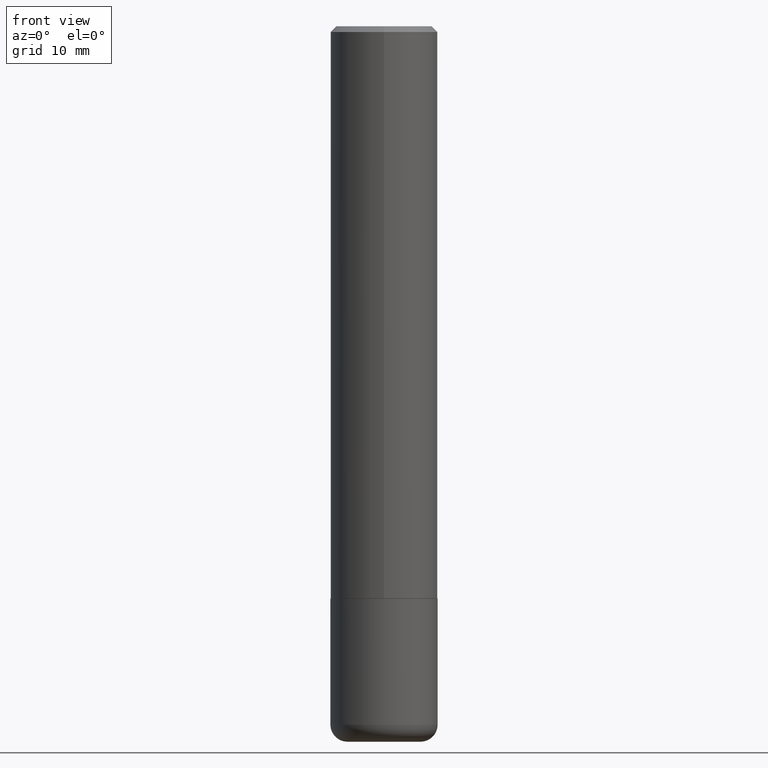
[diagram: clean part render]
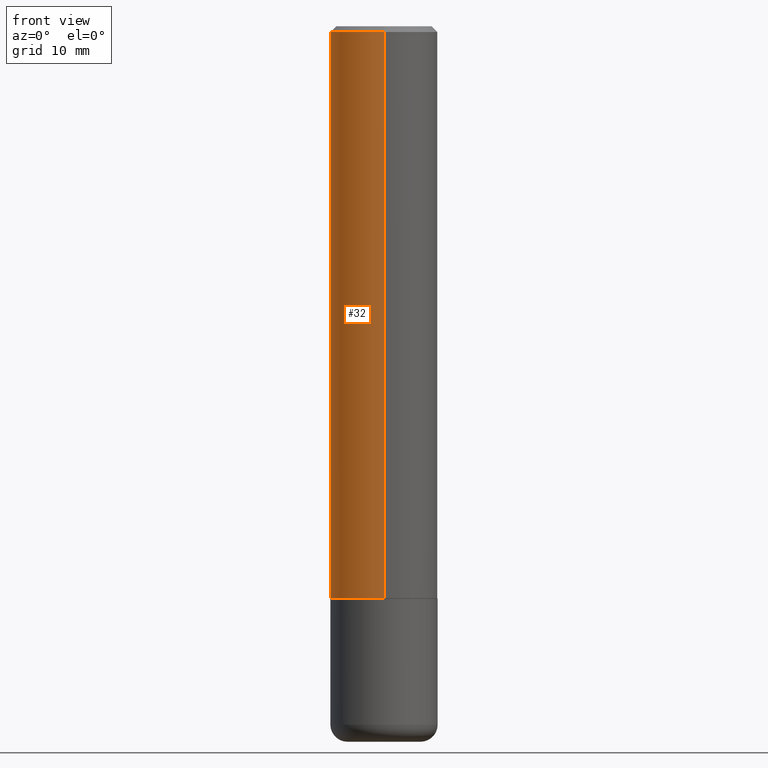
[diagram: same view with one face highlighted and labeled with its STEP entity id]
A machine part, front view. The second image highlights one B-rep face of the part: STEP entity #32.
In plain terms, the highlighted cylindrical surface (partial cylindrical patch) has radius 4.7625 mm, axis along (-0, 0, 1).
Its self-contained STEP definition (entity closure, byte-faithful):
#17 = DIRECTION ( 'NONE',  ( -6.982962677686265922E-15, -1.000000000000000000, 3.491920538655792507E-15 ) ) ;
#30 = DIRECTION ( 'NONE',  ( -6.982962677686265922E-15, -1.000000000000000000, 3.483106191921934371E-15 ) ) ;
#32 = ADVANCED_FACE ( 'NONE', ( #116 ), #201, .T. ) ;
#34 = DIRECTION ( 'NONE',  ( -2.445162114595160294E-29, 3.491920538655792902E-15, 1.000000000000000000 ) ) ;
#43 = VERTEX_POINT ( 'NONE', #175 ) ;
#48 = CARTESIAN_POINT ( 'NONE',  ( 4.887879067075725967E-29, -6.980349156772927879E-15, -1.998999999999999888 ) ) ;
#51 = EDGE_CURVE ( 'NONE', #221, #43, #342, .T. ) ;
#84 = AXIS2_PLACEMENT_3D ( 'NONE', #184, #314, #30 ) ;
#99 = EDGE_CURVE ( 'NONE', #43, #144, #245, .T. ) ;
#116 = FACE_OUTER_BOUND ( 'NONE', #194, .T. ) ;
#130 = VERTEX_POINT ( 'NONE', #417 ) ;
#144 = VERTEX_POINT ( 'NONE', #210 ) ;
#175 = CARTESIAN_POINT ( 'NONE',  ( -1.309305502066128268E-15, -0.1875000000000072442, -1.998999999999999444 ) ) ;
#178 = EDGE_CURVE ( 'NONE', #130, #144, #317, .T. ) ;
#184 = CARTESIAN_POINT ( 'NONE',  ( 4.890324229190331589E-31, -6.983841077311600052E-17, -0.02000000000000004205 ) ) ;
#185 = ORIENTED_EDGE ( 'NONE', *, *, #247, .F. ) ;
#193 = DIRECTION ( 'NONE',  ( -2.445162114595160294E-29, 3.491920538655792902E-15, 1.000000000000000000 ) ) ;
#194 = EDGE_LOOP ( 'NONE', ( #185, #346, #249, #246 ) ) ;
#201 = CYLINDRICAL_SURFACE ( 'NONE', #407, 0.1875000000000001943 ) ;
#203 = LINE ( 'NONE', #254, #384 ) ;
#210 = CARTESIAN_POINT ( 'NONE',  ( -1.286343374582161774E-15, -0.1875000000000001110, -0.01999999999999938979 ) ) ;
#221 = VERTEX_POINT ( 'NONE', #294 ) ;
#233 = DIRECTION ( 'NONE',  ( -2.445162114595160575E-29, 3.491920538655792507E-15, 1.000000000000000000 ) ) ;
#245 = LINE ( 'NONE', #378, #257 ) ;
#246 = ORIENTED_EDGE ( 'NONE', *, *, #178, .F. ) ;
#247 = EDGE_CURVE ( 'NONE', #221, #130, #203, .T. ) ;
#249 = ORIENTED_EDGE ( 'NONE', *, *, #99, .T. ) ;
#254 = CARTESIAN_POINT ( 'NONE',  ( 1.332267629550188835E-15, 0.1875000000000001943, -6.547351009979617607E-16 ) ) ;
#257 = VECTOR ( 'NONE', #34, 39.37007874015748143 ) ;
#264 = CARTESIAN_POINT ( 'NONE',  ( 0.000000000000000000, 0.000000000000000000, 0.000000000000000000 ) ) ;
#294 = CARTESIAN_POINT ( 'NONE',  ( 1.332267629550213684E-15, 0.1874999999999933109, -1.999000000000000554 ) ) ;
#314 = DIRECTION ( 'NONE',  ( -2.445162114595160575E-29, 3.491920538655792507E-15, 1.000000000000000000 ) ) ;
#317 = CIRCLE ( 'NONE', #84, 0.1875000000000000555 ) ;
#342 = CIRCLE ( 'NONE', #402, 0.1875000000000002776 ) ;
#346 = ORIENTED_EDGE ( 'NONE', *, *, #51, .T. ) ;
#363 = DIRECTION ( 'NONE',  ( -6.982962677686266711E-15, -1.000000000000000000, 2.913971193241876428E-15 ) ) ;
#378 = CARTESIAN_POINT ( 'NONE',  ( -1.309305502066176192E-15, -0.1875000000000001943, 6.547351009979617607E-16 ) ) ;
#384 = VECTOR ( 'NONE', #193, 39.37007874015748143 ) ;
#402 = AXIS2_PLACEMENT_3D ( 'NONE', #48, #233, #363 ) ;
#404 = DIRECTION ( 'NONE',  ( -2.445162114595160575E-29, 3.491920538655792507E-15, 1.000000000000000000 ) ) ;
#407 = AXIS2_PLACEMENT_3D ( 'NONE', #264, #404, #17 ) ;
#417 = CARTESIAN_POINT ( 'NONE',  ( 1.309305502066175797E-15, 0.1874999999999999722, -0.02000000000000069431 ) ) ;